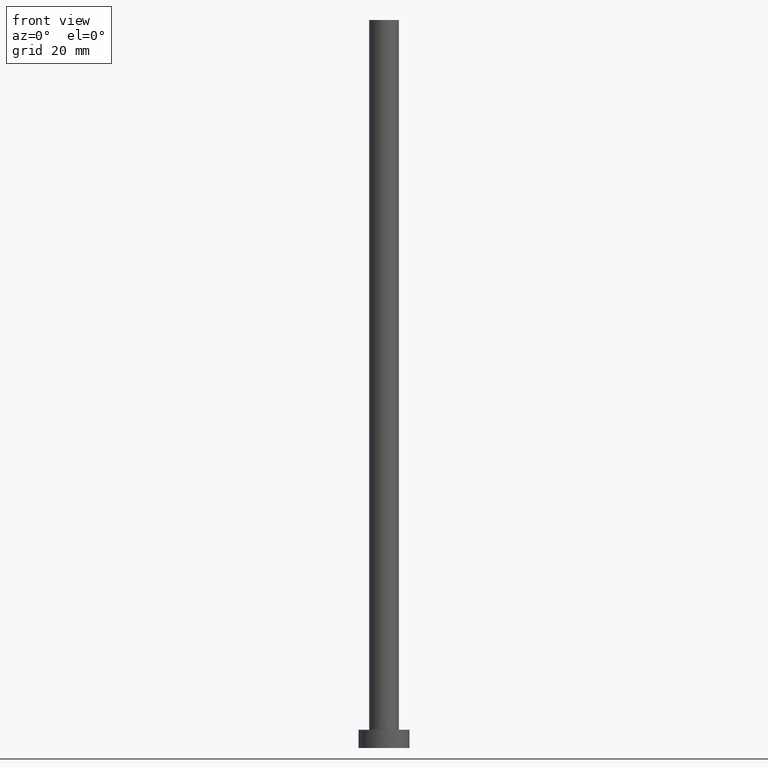
[diagram: clean part render]
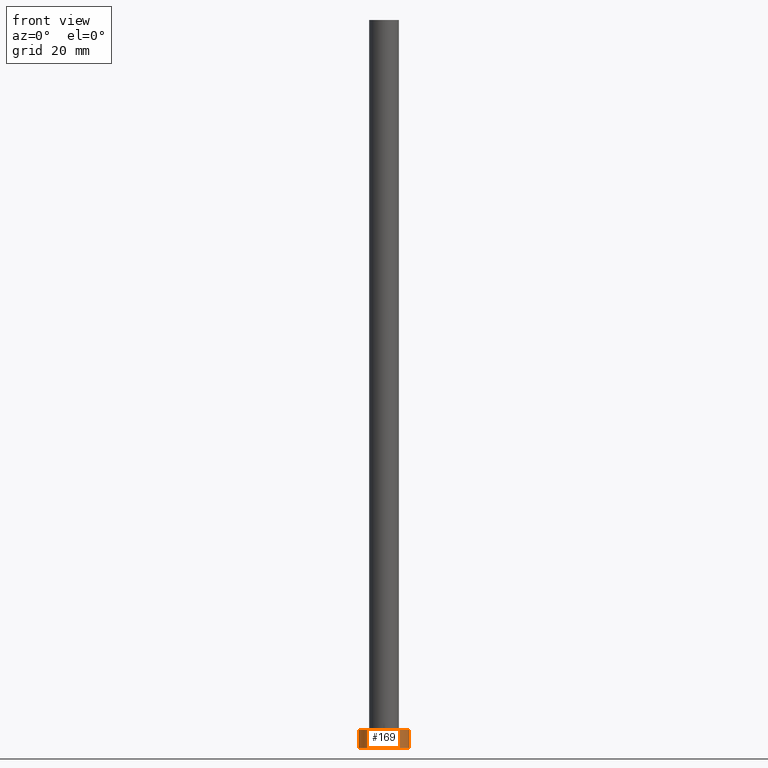
[diagram: same view with one face highlighted and labeled with its STEP entity id]
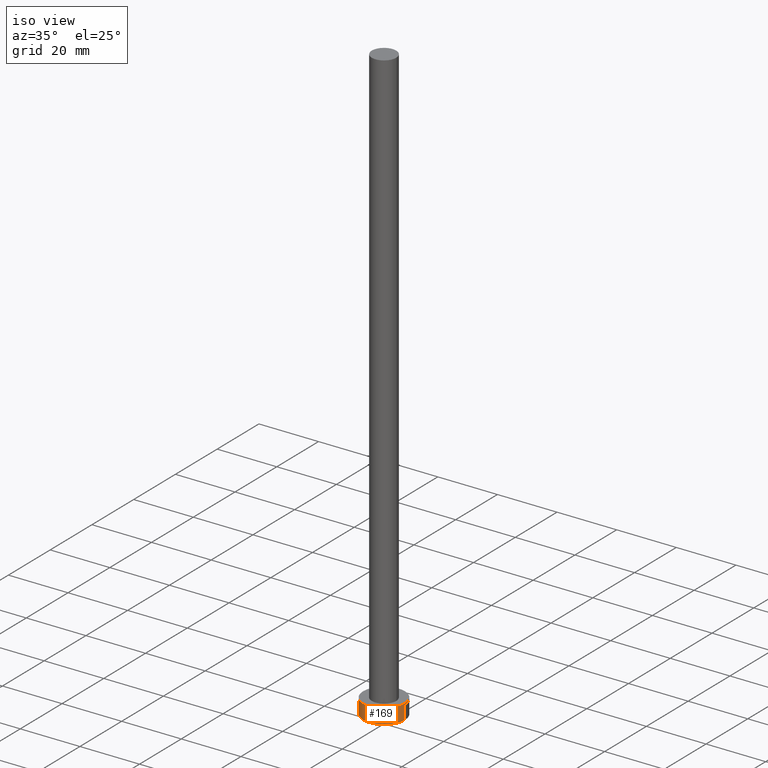
[diagram: same view with one face highlighted and labeled with its STEP entity id]
A machine part, front view. The second image highlights one B-rep face of the part: STEP entity #169.
A second angle (iso view) of the same face is appended — the face is thin or edge-on in the first view.
In plain terms, the highlighted cylindrical surface (edge-blend (fillet) strip) has radius 7 mm, axis along (-0, -0, -1).
Its self-contained STEP definition (entity closure, byte-faithful):
#8 = DIRECTION ( 'NONE',  ( -0.000000000000000000, -0.000000000000000000, -1.000000000000000000 ) ) ;
#24 = EDGE_CURVE ( 'NONE', #112, #43, #212, .T. ) ;
#29 = CYLINDRICAL_SURFACE ( 'NONE', #198, 7.000000000000000000 ) ;
#43 = VERTEX_POINT ( 'NONE', #235 ) ;
#44 = ORIENTED_EDGE ( 'NONE', *, *, #60, .T. ) ;
#50 = CARTESIAN_POINT ( 'NONE',  ( -7.000000000000000000, 0.000000000000000000, 5.000000000000000000 ) ) ;
#53 = CARTESIAN_POINT ( 'NONE',  ( 7.000000000000000000, 8.572527594031473190E-16, 5.000000000000000000 ) ) ;
#60 = EDGE_CURVE ( 'NONE', #112, #142, #93, .T. ) ;
#82 = DIRECTION ( 'NONE',  ( 1.000000000000000000, 0.000000000000000000, 0.000000000000000000 ) ) ;
#86 = ORIENTED_EDGE ( 'NONE', *, *, #24, .F. ) ;
#93 = LINE ( 'NONE', #50, #141 ) ;
#98 = CARTESIAN_POINT ( 'NONE',  ( -7.000000000000000000, 0.000000000000000000, 0.000000000000000000 ) ) ;
#100 = CARTESIAN_POINT ( 'NONE',  ( 0.000000000000000000, 0.000000000000000000, 5.000000000000000000 ) ) ;
#110 = DIRECTION ( 'NONE',  ( 1.000000000000000000, 0.000000000000000000, 0.000000000000000000 ) ) ;
#112 = VERTEX_POINT ( 'NONE', #239 ) ;
#119 = DIRECTION ( 'NONE',  ( -0.000000000000000000, -0.000000000000000000, -1.000000000000000000 ) ) ;
#122 = DIRECTION ( 'NONE',  ( -1.000000000000000000, 0.000000000000000000, 0.000000000000000000 ) ) ;
#123 = CARTESIAN_POINT ( 'NONE',  ( 7.000000000000000000, 8.572527594031473190E-16, 0.000000000000000000 ) ) ;
#124 = VECTOR ( 'NONE', #119, 1000.000000000000000 ) ;
#138 = EDGE_CURVE ( 'NONE', #43, #238, #152, .T. ) ;
#141 = VECTOR ( 'NONE', #176, 1000.000000000000000 ) ;
#142 = VERTEX_POINT ( 'NONE', #98 ) ;
#145 = CIRCLE ( 'NONE', #183, 7.000000000000000000 ) ;
#149 = DIRECTION ( 'NONE',  ( 0.000000000000000000, 0.000000000000000000, 1.000000000000000000 ) ) ;
#152 = LINE ( 'NONE', #53, #124 ) ;
#157 = ORIENTED_EDGE ( 'NONE', *, *, #230, .T. ) ;
#164 = CARTESIAN_POINT ( 'NONE',  ( 0.000000000000000000, 0.000000000000000000, 0.000000000000000000 ) ) ;
#169 = ADVANCED_FACE ( 'NONE', ( #223 ), #29, .T. ) ;
#173 = ORIENTED_EDGE ( 'NONE', *, *, #138, .F. ) ;
#175 = CARTESIAN_POINT ( 'NONE',  ( 0.000000000000000000, 0.000000000000000000, 5.000000000000000000 ) ) ;
#176 = DIRECTION ( 'NONE',  ( -0.000000000000000000, -0.000000000000000000, -1.000000000000000000 ) ) ;
#183 = AXIS2_PLACEMENT_3D ( 'NONE', #164, #251, #82 ) ;
#187 = AXIS2_PLACEMENT_3D ( 'NONE', #175, #149, #110 ) ;
#198 = AXIS2_PLACEMENT_3D ( 'NONE', #100, #8, #122 ) ;
#212 = CIRCLE ( 'NONE', #187, 7.000000000000000000 ) ;
#223 = FACE_OUTER_BOUND ( 'NONE', #253, .T. ) ;
#230 = EDGE_CURVE ( 'NONE', #142, #238, #145, .T. ) ;
#235 = CARTESIAN_POINT ( 'NONE',  ( 7.000000000000000000, 8.572527594031473190E-16, 5.000000000000000000 ) ) ;
#238 = VERTEX_POINT ( 'NONE', #123 ) ;
#239 = CARTESIAN_POINT ( 'NONE',  ( -7.000000000000000000, 0.000000000000000000, 5.000000000000000000 ) ) ;
#251 = DIRECTION ( 'NONE',  ( 0.000000000000000000, 0.000000000000000000, 1.000000000000000000 ) ) ;
#253 = EDGE_LOOP ( 'NONE', ( #173, #86, #44, #157 ) ) ;